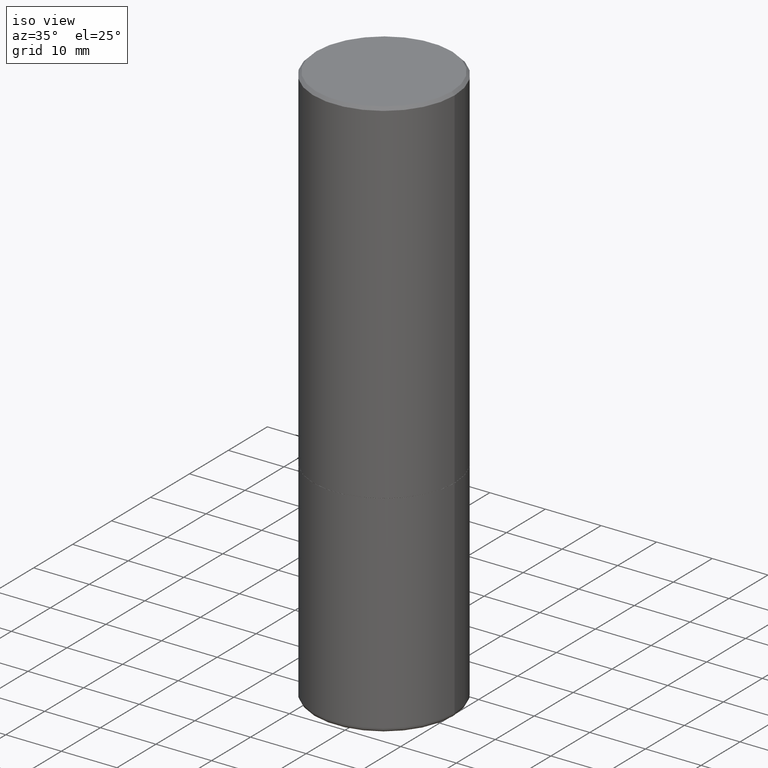
[diagram: clean part render]
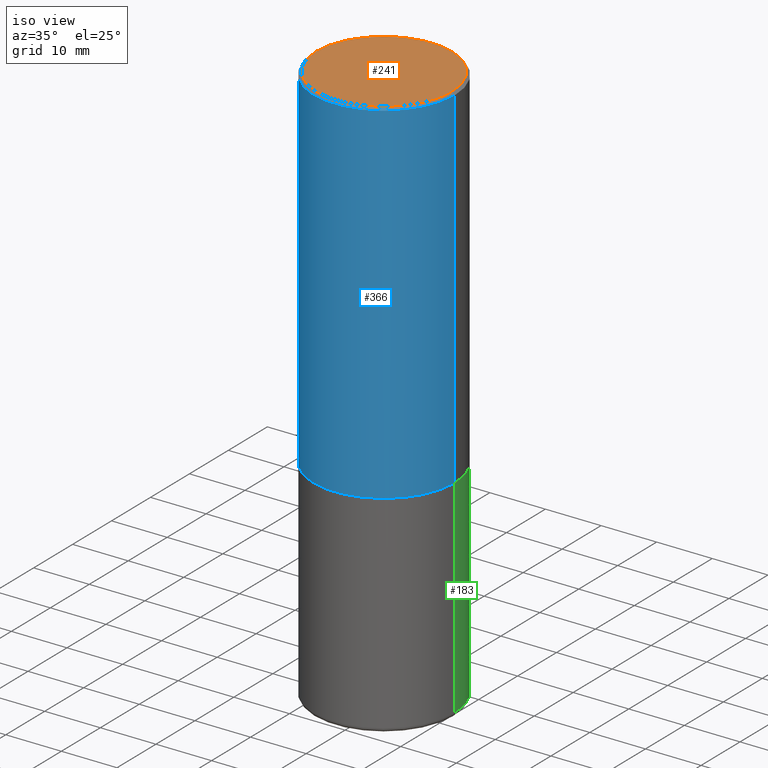
[diagram: same view with three faces highlighted in distinct colors, each labeled with its STEP entity id]
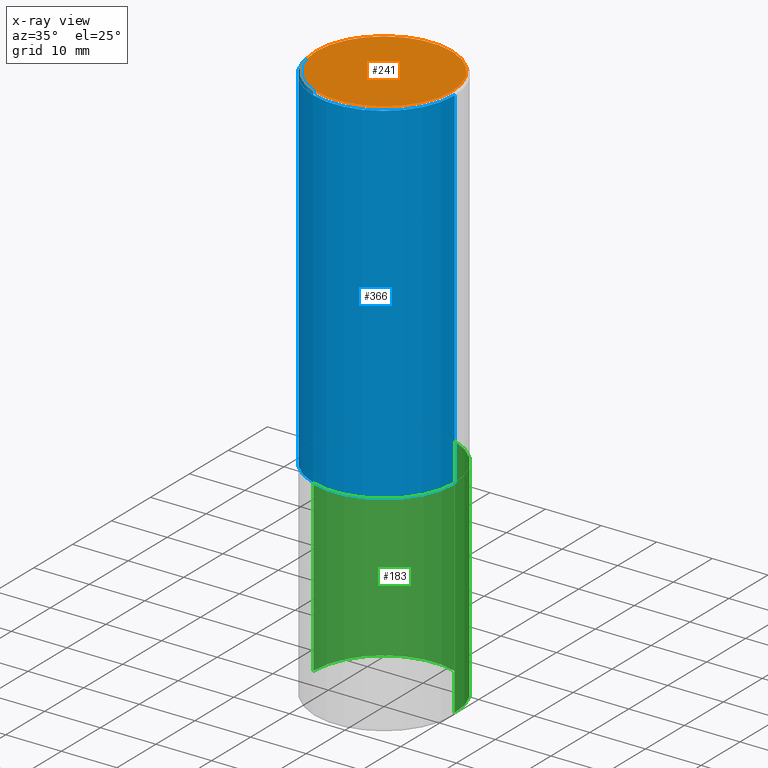
[diagram: x-ray of the same camera — body ghosted, the three highlighted faces saturated]
A machine part, iso view with three faces highlighted in distinct colors.
The next image is the same camera in x-ray (body ghosted, the three faces saturated) — at least one of them is partly hidden behind the body in this view.
Their STEP definitions:

[orange] entity #241 — the highlighted planar face has unit normal (0, -0, -1).
#11 = FACE_OUTER_BOUND ( 'NONE', #314, .T. ) ;
#37 = CARTESIAN_POINT ( 'NONE',  ( -0.4799999999999998157, 3.386736898677839197E-15, 2.561107494060010972E-16 ) ) ;
#62 = EDGE_CURVE ( 'NONE', #224, #341, #63, .T. ) ;
#63 = CIRCLE ( 'NONE', #119, 0.4799999999999998157 ) ;
#70 = PLANE ( 'NONE',  #110 ) ;
#98 = DIRECTION ( 'NONE',  ( -2.445468806185136597E-29, 3.491481338843145583E-15, 1.000000000000000000 ) ) ;
#108 = CARTESIAN_POINT ( 'NONE',  ( 3.351822085289406364E-15, 0.4799999999999998157, -1.547855667941696890E-15 ) ) ;
#110 = AXIS2_PLACEMENT_3D ( 'NONE', #108, #160, #233 ) ;
#111 = EDGE_CURVE ( 'NONE', #341, #224, #203, .T. ) ;
#119 = AXIS2_PLACEMENT_3D ( 'NONE', #259, #98, #358 ) ;
#160 = DIRECTION ( 'NONE',  ( 2.438088387897960049E-29, -3.491481338843145188E-15, -1.000000000000000000 ) ) ;
#184 = ORIENTED_EDGE ( 'NONE', *, *, #111, .T. ) ;
#190 = DIRECTION ( 'NONE',  ( -2.445468806185136597E-29, 3.491481338843145583E-15, 1.000000000000000000 ) ) ;
#191 = DIRECTION ( 'NONE',  ( 1.000000000000000000, -6.982962677686266711E-15, 4.878011538933552085E-29 ) ) ;
#203 = CIRCLE ( 'NONE', #267, 0.4799999999999998157 ) ;
#224 = VERTEX_POINT ( 'NONE', #37 ) ;
#232 = ORIENTED_EDGE ( 'NONE', *, *, #62, .T. ) ;
#233 = DIRECTION ( 'NONE',  ( -1.000000000000000000, 6.982962677686265922E-15, -4.876176775795935793E-29 ) ) ;
#241 = ADVANCED_FACE ( 'NONE', ( #11 ), #70, .F. ) ;
#259 = CARTESIAN_POINT ( 'NONE',  ( -6.263108486011318684E-45, 8.942059022282684186E-31, 2.561107494060246644E-16 ) ) ;
#267 = AXIS2_PLACEMENT_3D ( 'NONE', #415, #190, #191 ) ;
#298 = CARTESIAN_POINT ( 'NONE',  ( 0.4799999999999998157, -3.396558832296481310E-15, 2.561107494060482809E-16 ) ) ;
#314 = EDGE_LOOP ( 'NONE', ( #232, #184 ) ) ;
#341 = VERTEX_POINT ( 'NONE', #298 ) ;
#358 = DIRECTION ( 'NONE',  ( 1.000000000000000000, -6.982962677686266711E-15, 4.878011538933552085E-29 ) ) ;
#415 = CARTESIAN_POINT ( 'NONE',  ( -6.263108486011318684E-45, 8.942059022282684186E-31, 2.561107494060246644E-16 ) ) ;

[blue] entity #366 — the highlighted cylindrical surface (partial cylindrical patch) has radius 12.7 mm, axis along (-0, 0, 1).
#1 = FACE_OUTER_BOUND ( 'NONE', #52, .T. ) ;
#3 = VERTEX_POINT ( 'NONE', #388 ) ;
#27 = LINE ( 'NONE', #127, #76 ) ;
#36 = AXIS2_PLACEMENT_3D ( 'NONE', #51, #145, #313 ) ;
#38 = EDGE_CURVE ( 'NONE', #396, #319, #27, .T. ) ;
#51 = CARTESIAN_POINT ( 'NONE',  ( 0.000000000000000000, 0.000000000000000000, 0.000000000000000000 ) ) ;
#52 = EDGE_LOOP ( 'NONE', ( #276, #349, #71, #375 ) ) ;
#71 = ORIENTED_EDGE ( 'NONE', *, *, #38, .T. ) ;
#76 = VECTOR ( 'NONE', #99, 39.37007874015748143 ) ;
#82 = CYLINDRICAL_SURFACE ( 'NONE', #36, 0.5000000000000001110 ) ;
#99 = DIRECTION ( 'NONE',  ( -2.445468806185136877E-29, 3.491481338843145188E-15, 1.000000000000000000 ) ) ;
#102 = CARTESIAN_POINT ( 'NONE',  ( -0.5000000000000001110, 3.421651712066270452E-15, -0.02000000000000010797 ) ) ;
#127 = CARTESIAN_POINT ( 'NONE',  ( 0.5000000000000001110, -3.491481338843134539E-15, 2.438088387897968457E-29 ) ) ;
#138 = DIRECTION ( 'NONE',  ( -2.445468806185136877E-29, 3.491481338843145188E-15, 1.000000000000000000 ) ) ;
#141 = DIRECTION ( 'NONE',  ( 1.000000000000000000, -6.982962677686269866E-15, 0.000000000000000000 ) ) ;
#145 = DIRECTION ( 'NONE',  ( -2.445468806185136597E-29, 3.491481338843145583E-15, 1.000000000000000000 ) ) ;
#174 = CARTESIAN_POINT ( 'NONE',  ( -0.5000000000000001110, 3.552713678800501718E-15, -2.459467545127453732E-29 ) ) ;
#188 = VECTOR ( 'NONE', #138, 39.37007874015748143 ) ;
#199 = DIRECTION ( 'NONE',  ( -2.445468806185136597E-29, 3.491481338843145583E-15, 1.000000000000000000 ) ) ;
#205 = LINE ( 'NONE', #174, #188 ) ;
#235 = CARTESIAN_POINT ( 'NONE',  ( 4.890937612370299433E-31, -6.982962677686328587E-17, -0.02000000000000010797 ) ) ;
#252 = CIRCLE ( 'NONE', #258, 0.5000000000000001110 ) ;
#258 = AXIS2_PLACEMENT_3D ( 'NONE', #235, #199, #364 ) ;
#269 = VERTEX_POINT ( 'NONE', #102 ) ;
#274 = EDGE_CURVE ( 'NONE', #269, #319, #252, .T. ) ;
#276 = ORIENTED_EDGE ( 'NONE', *, *, #376, .F. ) ;
#280 = CARTESIAN_POINT ( 'NONE',  ( 0.5000000000000002220, -1.221669320461215845E-14, -2.499000000000000110 ) ) ;
#307 = CARTESIAN_POINT ( 'NONE',  ( 0.5000000000000001110, -3.500078625662629868E-15, -0.02000000000000010797 ) ) ;
#313 = DIRECTION ( 'NONE',  ( 1.000000000000000000, -6.982962677686267499E-15, 4.876176775795935793E-29 ) ) ;
#315 = CARTESIAN_POINT ( 'NONE',  ( 6.111226546656657010E-29, -8.725211865769021935E-15, -2.499000000000000110 ) ) ;
#319 = VERTEX_POINT ( 'NONE', #307 ) ;
#349 = ORIENTED_EDGE ( 'NONE', *, *, #402, .T. ) ;
#350 = AXIS2_PLACEMENT_3D ( 'NONE', #315, #377, #141 ) ;
#364 = DIRECTION ( 'NONE',  ( 1.000000000000000000, -6.982962677686265922E-15, 0.000000000000000000 ) ) ;
#366 = ADVANCED_FACE ( 'NONE', ( #1 ), #82, .T. ) ;
#375 = ORIENTED_EDGE ( 'NONE', *, *, #274, .F. ) ;
#376 = EDGE_CURVE ( 'NONE', #3, #269, #205, .T. ) ;
#377 = DIRECTION ( 'NONE',  ( -2.445468806185136597E-29, 3.491481338843145583E-15, 1.000000000000000000 ) ) ;
#386 = CIRCLE ( 'NONE', #350, 0.5000000000000002220 ) ;
#388 = CARTESIAN_POINT ( 'NONE',  ( -0.5000000000000002220, -8.448070674724393209E-16, -2.499000000000000110 ) ) ;
#396 = VERTEX_POINT ( 'NONE', #280 ) ;
#402 = EDGE_CURVE ( 'NONE', #3, #396, #386, .T. ) ;

[green] entity #183 — the highlighted cylindrical surface (partial cylindrical patch) has radius 12.7 mm, axis along (-0, 0, 1).
#6 = CIRCLE ( 'NONE', #170, 0.5000000000000000000 ) ;
#14 = AXIS2_PLACEMENT_3D ( 'NONE', #257, #294, #355 ) ;
#33 = CARTESIAN_POINT ( 'NONE',  ( 0.5000000000000000000, -1.735266225405042074E-14, -3.970000000000000195 ) ) ;
#34 = VERTEX_POINT ( 'NONE', #123 ) ;
#53 = CARTESIAN_POINT ( 'NONE',  ( -0.5000000000000000000, -7.742228452357075234E-15, -2.500000000000000000 ) ) ;
#56 = CIRCLE ( 'NONE', #14, 0.5000000000000000000 ) ;
#64 = CARTESIAN_POINT ( 'NONE',  ( 0.5000000000000000000, -1.222018468595099830E-14, -2.500000000000000000 ) ) ;
#74 = VECTOR ( 'NONE', #373, 39.37007874015748143 ) ;
#89 = VERTEX_POINT ( 'NONE', #64 ) ;
#92 = DIRECTION ( 'NONE',  ( -2.445468806185136877E-29, 3.491481338843145188E-15, 1.000000000000000000 ) ) ;
#95 = EDGE_CURVE ( 'NONE', #140, #89, #285, .T. ) ;
#123 = CARTESIAN_POINT ( 'NONE',  ( -0.5000000000000000000, -1.030846723640678645E-14, -3.970000000000000195 ) ) ;
#140 = VERTEX_POINT ( 'NONE', #33 ) ;
#144 = EDGE_CURVE ( 'NONE', #89, #378, #56, .T. ) ;
#165 = ORIENTED_EDGE ( 'NONE', *, *, #392, .T. ) ;
#167 = DIRECTION ( 'NONE',  ( 1.000000000000000000, -6.982962677686266711E-15, 0.000000000000000000 ) ) ;
#170 = AXIS2_PLACEMENT_3D ( 'NONE', #335, #395, #167 ) ;
#177 = CARTESIAN_POINT ( 'NONE',  ( -0.5000000000000000000, 3.552713678800500929E-15, -2.459467545127452891E-29 ) ) ;
#178 = ORIENTED_EDGE ( 'NONE', *, *, #144, .F. ) ;
#180 = LINE ( 'NONE', #177, #74 ) ;
#183 = ADVANCED_FACE ( 'NONE', ( #334 ), #370, .T. ) ;
#198 = DIRECTION ( 'NONE',  ( 1.000000000000000000, -6.982962677686266711E-15, 4.876176775795935793E-29 ) ) ;
#249 = ORIENTED_EDGE ( 'NONE', *, *, #308, .T. ) ;
#251 = CARTESIAN_POINT ( 'NONE',  ( 0.5000000000000000000, -3.491481338843133355E-15, 2.438088387897967896E-29 ) ) ;
#257 = CARTESIAN_POINT ( 'NONE',  ( 6.113672015462842613E-29, -8.728703347107864943E-15, -2.500000000000000000 ) ) ;
#281 = EDGE_LOOP ( 'NONE', ( #249, #165, #178, #394 ) ) ;
#285 = LINE ( 'NONE', #251, #303 ) ;
#294 = DIRECTION ( 'NONE',  ( -2.445468806185136597E-29, 3.491481338843145583E-15, 1.000000000000000000 ) ) ;
#299 = DIRECTION ( 'NONE',  ( -2.445468806185136597E-29, 3.491481338843145583E-15, 1.000000000000000000 ) ) ;
#303 = VECTOR ( 'NONE', #92, 39.37007874015748143 ) ;
#305 = CARTESIAN_POINT ( 'NONE',  ( 0.000000000000000000, 0.000000000000000000, 0.000000000000000000 ) ) ;
#308 = EDGE_CURVE ( 'NONE', #140, #34, #6, .T. ) ;
#334 = FACE_OUTER_BOUND ( 'NONE', #281, .T. ) ;
#335 = CARTESIAN_POINT ( 'NONE',  ( 9.708511160554992872E-29, -1.386118091520728738E-14, -3.970000000000000195 ) ) ;
#355 = DIRECTION ( 'NONE',  ( 1.000000000000000000, -6.982962677686269077E-15, 0.000000000000000000 ) ) ;
#370 = CYLINDRICAL_SURFACE ( 'NONE', #400, 0.5000000000000000000 ) ;
#373 = DIRECTION ( 'NONE',  ( -2.445468806185136877E-29, 3.491481338843145188E-15, 1.000000000000000000 ) ) ;
#378 = VERTEX_POINT ( 'NONE', #53 ) ;
#392 = EDGE_CURVE ( 'NONE', #34, #378, #180, .T. ) ;
#394 = ORIENTED_EDGE ( 'NONE', *, *, #95, .F. ) ;
#395 = DIRECTION ( 'NONE',  ( -2.445468806185136597E-29, 3.491481338843145583E-15, 1.000000000000000000 ) ) ;
#400 = AXIS2_PLACEMENT_3D ( 'NONE', #305, #299, #198 ) ;